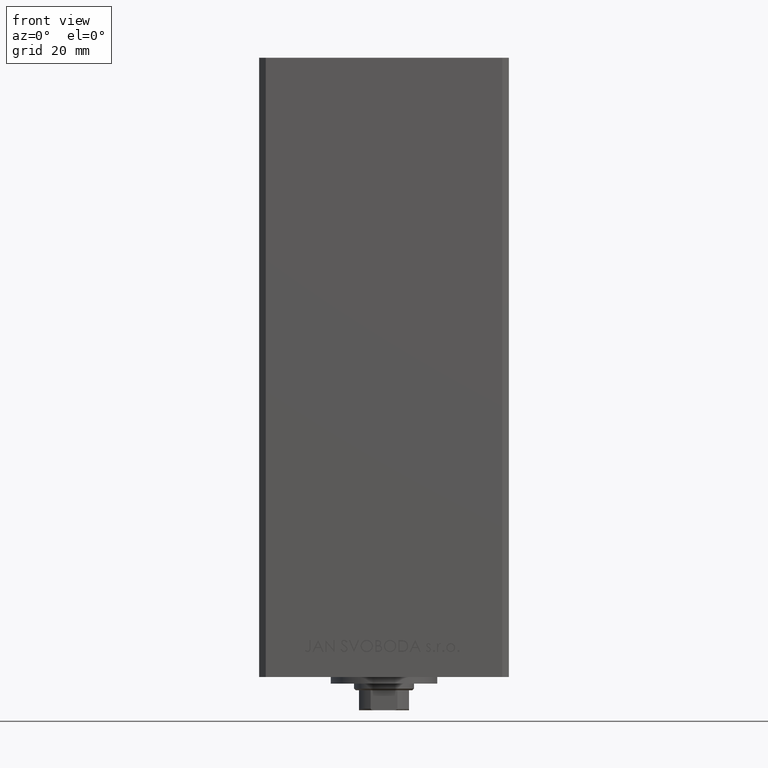
[diagram: clean part render]
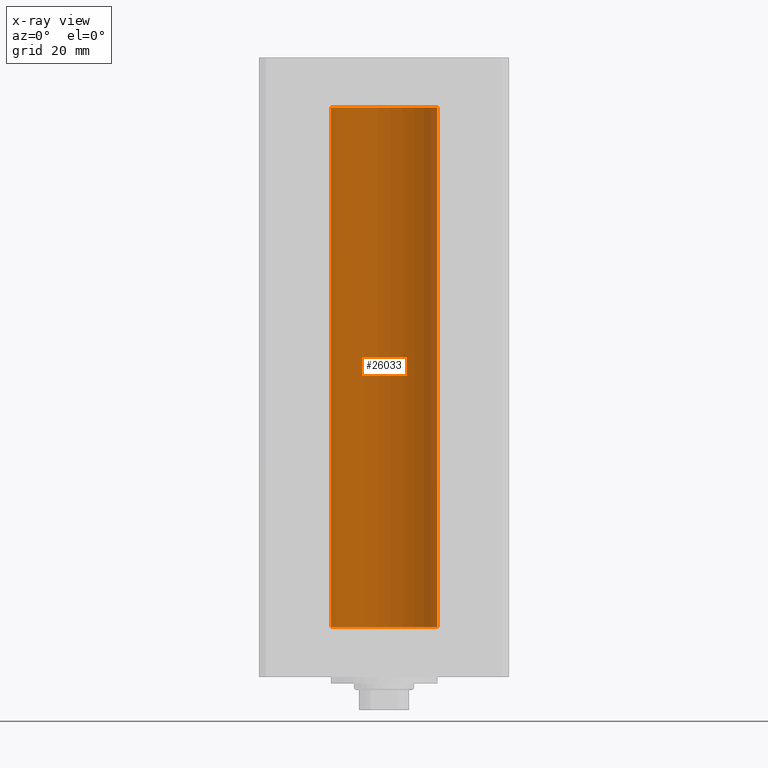
[diagram: x-ray — body ghosted, one internal face saturated and labeled with its STEP entity id]
A machine part, front view, then the same camera in x-ray: the body is ghosted and one INTERNAL B-rep face — a face not visible from any outside direction — is saturated and labeled: STEP entity #26033.
In plain terms, the highlighted cylindrical surface (partial cylindrical patch) has radius 16 mm, axis along (-0, -0, -1).
Its self-contained STEP definition (entity closure, byte-faithful):
#2292 = CARTESIAN_POINT ( 'NONE',  ( 16.00000000000000000, 1.959434878635765131E-15, 0.000000000000000000 ) ) ;
#3043 = FACE_OUTER_BOUND ( 'NONE', #6446, .T. ) ;
#3157 = ORIENTED_EDGE ( 'NONE', *, *, #10622, .F. ) ;
#4582 = VERTEX_POINT ( 'NONE', #23000 ) ;
#5143 = CARTESIAN_POINT ( 'NONE',  ( -16.00000000000000000, 0.000000000000000000, 156.0000000000000000 ) ) ;
#5908 = AXIS2_PLACEMENT_3D ( 'NONE', #21611, #40656, #6742 ) ;
#6292 = CIRCLE ( 'NONE', #33930, 16.00000000000000000 ) ;
#6446 = EDGE_LOOP ( 'NONE', ( #3157, #46627, #28882, #40739 ) ) ;
#6742 = DIRECTION ( 'NONE',  ( -1.000000000000000000, 0.000000000000000000, 0.000000000000000000 ) ) ;
#9336 = DIRECTION ( 'NONE',  ( -0.000000000000000000, -0.000000000000000000, -1.000000000000000000 ) ) ;
#10622 = EDGE_CURVE ( 'NONE', #4582, #45454, #12800, .T. ) ;
#12800 = LINE ( 'NONE', #39773, #41131 ) ;
#15196 = AXIS2_PLACEMENT_3D ( 'NONE', #44471, #18240, #43989 ) ;
#15429 = EDGE_CURVE ( 'NONE', #17721, #21333, #16776, .T. ) ;
#16776 = LINE ( 'NONE', #5143, #30069 ) ;
#17721 = VERTEX_POINT ( 'NONE', #20016 ) ;
#18240 = DIRECTION ( 'NONE',  ( -0.000000000000000000, 0.000000000000000000, 1.000000000000000000 ) ) ;
#18921 = EDGE_CURVE ( 'NONE', #4582, #17721, #37322, .T. ) ;
#20016 = CARTESIAN_POINT ( 'NONE',  ( -16.00000000000000000, 0.000000000000000000, 156.0000000000000000 ) ) ;
#21333 = VERTEX_POINT ( 'NONE', #44724 ) ;
#21611 = CARTESIAN_POINT ( 'NONE',  ( 0.000000000000000000, 0.000000000000000000, 156.0000000000000000 ) ) ;
#23000 = CARTESIAN_POINT ( 'NONE',  ( 16.00000000000000000, 1.959434878635765131E-15, 156.0000000000000000 ) ) ;
#26033 = ADVANCED_FACE ( 'NONE', ( #3043 ), #44355, .F. ) ;
#28882 = ORIENTED_EDGE ( 'NONE', *, *, #15429, .T. ) ;
#30069 = VECTOR ( 'NONE', #31124, 1000.000000000000000 ) ;
#31124 = DIRECTION ( 'NONE',  ( -0.000000000000000000, -0.000000000000000000, -1.000000000000000000 ) ) ;
#33679 = DIRECTION ( 'NONE',  ( -0.000000000000000000, 0.000000000000000000, 1.000000000000000000 ) ) ;
#33930 = AXIS2_PLACEMENT_3D ( 'NONE', #48536, #33679, #37167 ) ;
#37167 = DIRECTION ( 'NONE',  ( 1.000000000000000000, 0.000000000000000000, 0.000000000000000000 ) ) ;
#37322 = CIRCLE ( 'NONE', #15196, 16.00000000000000000 ) ;
#39773 = CARTESIAN_POINT ( 'NONE',  ( 16.00000000000000000, 1.959434878635765131E-15, 156.0000000000000000 ) ) ;
#40656 = DIRECTION ( 'NONE',  ( -0.000000000000000000, -0.000000000000000000, -1.000000000000000000 ) ) ;
#40739 = ORIENTED_EDGE ( 'NONE', *, *, #41550, .F. ) ;
#41131 = VECTOR ( 'NONE', #9336, 1000.000000000000000 ) ;
#41550 = EDGE_CURVE ( 'NONE', #45454, #21333, #6292, .T. ) ;
#43989 = DIRECTION ( 'NONE',  ( 1.000000000000000000, 0.000000000000000000, 0.000000000000000000 ) ) ;
#44355 = CYLINDRICAL_SURFACE ( 'NONE', #5908, 16.00000000000000000 ) ;
#44471 = CARTESIAN_POINT ( 'NONE',  ( 0.000000000000000000, 0.000000000000000000, 156.0000000000000000 ) ) ;
#44724 = CARTESIAN_POINT ( 'NONE',  ( -16.00000000000000000, 0.000000000000000000, 0.000000000000000000 ) ) ;
#45454 = VERTEX_POINT ( 'NONE', #2292 ) ;
#46627 = ORIENTED_EDGE ( 'NONE', *, *, #18921, .T. ) ;
#48536 = CARTESIAN_POINT ( 'NONE',  ( 0.000000000000000000, 0.000000000000000000, 0.000000000000000000 ) ) ;